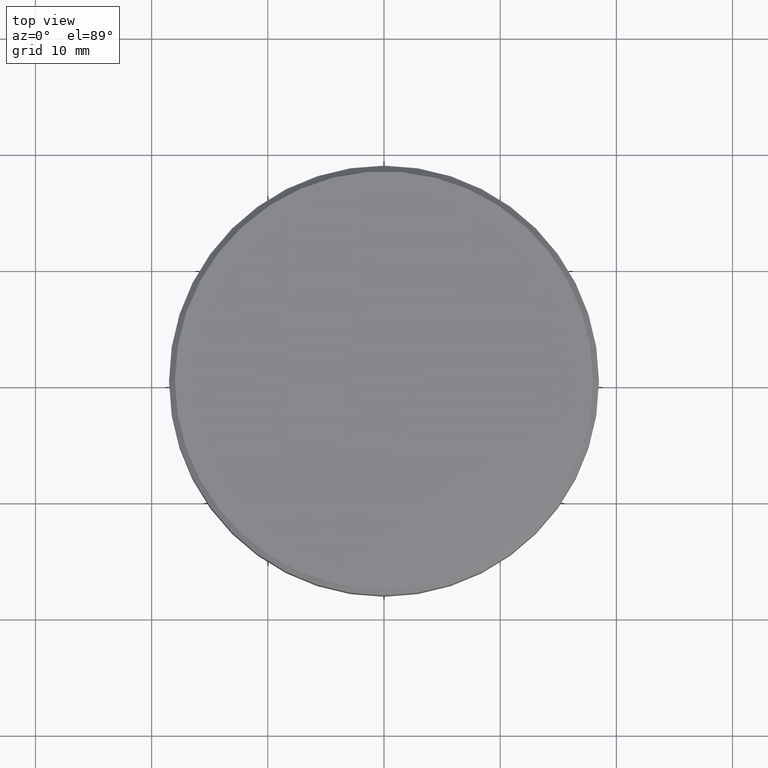
[diagram: clean part render]
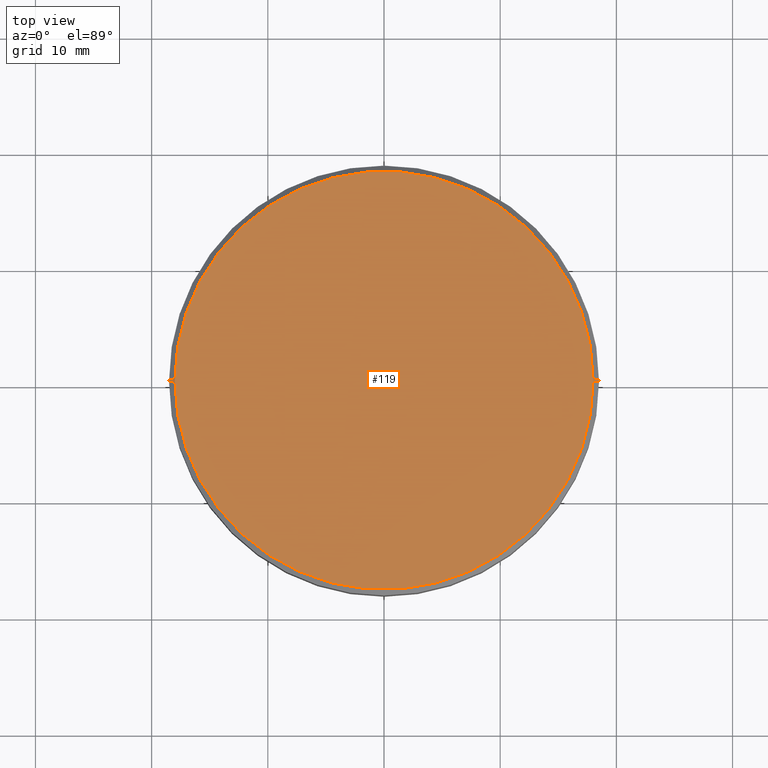
[diagram: same view with one face highlighted and labeled with its STEP entity id]
A machine part, top view. The second image highlights one B-rep face of the part: STEP entity #119.
In plain terms, the highlighted planar face has unit normal (0, -0, 1).
Its self-contained STEP definition (entity closure, byte-faithful):
#3 = VERTEX_POINT ( 'NONE', #77 ) ;
#4 = CIRCLE ( 'NONE', #54, 17.99999999999999645 ) ;
#12 = DIRECTION ( 'NONE',  ( -0.000000000000000000, -0.000000000000000000, 1.000000000000000000 ) ) ;
#22 = DIRECTION ( 'NONE',  ( 1.000000000000000000, 0.000000000000000000, 0.000000000000000000 ) ) ;
#23 = DIRECTION ( 'NONE',  ( 1.000000000000000000, 0.000000000000000000, 0.000000000000000000 ) ) ;
#29 = CARTESIAN_POINT ( 'NONE',  ( -17.99999999999999645, 0.000000000000000000, 0.000000000000000000 ) ) ;
#31 = EDGE_CURVE ( 'NONE', #3, #229, #102, .T. ) ;
#33 = EDGE_LOOP ( 'NONE', ( #396, #297 ) ) ;
#54 = AXIS2_PLACEMENT_3D ( 'NONE', #300, #12, #365 ) ;
#77 = CARTESIAN_POINT ( 'NONE',  ( 17.99999999999999645, 2.234980408443919215E-15, 0.000000000000000000 ) ) ;
#102 = CIRCLE ( 'NONE', #318, 17.99999999999999645 ) ;
#119 = ADVANCED_FACE ( 'NONE', ( #308 ), #122, .T. ) ;
#122 = PLANE ( 'NONE',  #234 ) ;
#185 = CARTESIAN_POINT ( 'NONE',  ( 0.000000000000000000, 0.000000000000000000, 0.000000000000000000 ) ) ;
#214 = DIRECTION ( 'NONE',  ( -0.000000000000000000, -0.000000000000000000, 1.000000000000000000 ) ) ;
#229 = VERTEX_POINT ( 'NONE', #29 ) ;
#234 = AXIS2_PLACEMENT_3D ( 'NONE', #185, #315, #23 ) ;
#297 = ORIENTED_EDGE ( 'NONE', *, *, #31, .T. ) ;
#300 = CARTESIAN_POINT ( 'NONE',  ( 0.000000000000000000, 0.000000000000000000, 0.000000000000000000 ) ) ;
#308 = FACE_OUTER_BOUND ( 'NONE', #33, .T. ) ;
#315 = DIRECTION ( 'NONE',  ( 0.000000000000000000, -0.000000000000000000, 1.000000000000000000 ) ) ;
#318 = AXIS2_PLACEMENT_3D ( 'NONE', #401, #214, #22 ) ;
#345 = EDGE_CURVE ( 'NONE', #229, #3, #4, .T. ) ;
#365 = DIRECTION ( 'NONE',  ( 1.000000000000000000, 0.000000000000000000, 0.000000000000000000 ) ) ;
#396 = ORIENTED_EDGE ( 'NONE', *, *, #345, .T. ) ;
#401 = CARTESIAN_POINT ( 'NONE',  ( 0.000000000000000000, 0.000000000000000000, 0.000000000000000000 ) ) ;